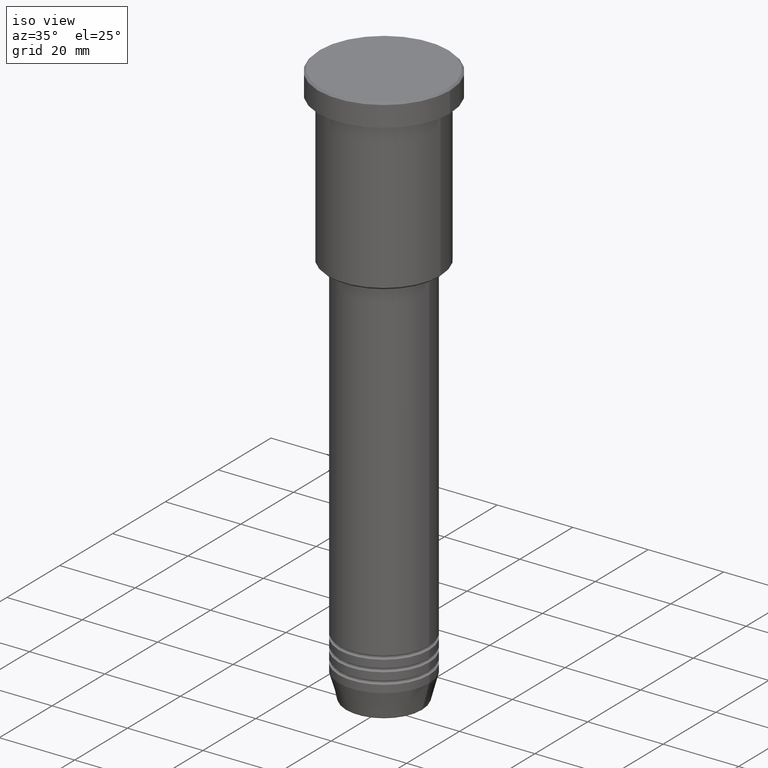
[diagram: clean part render]
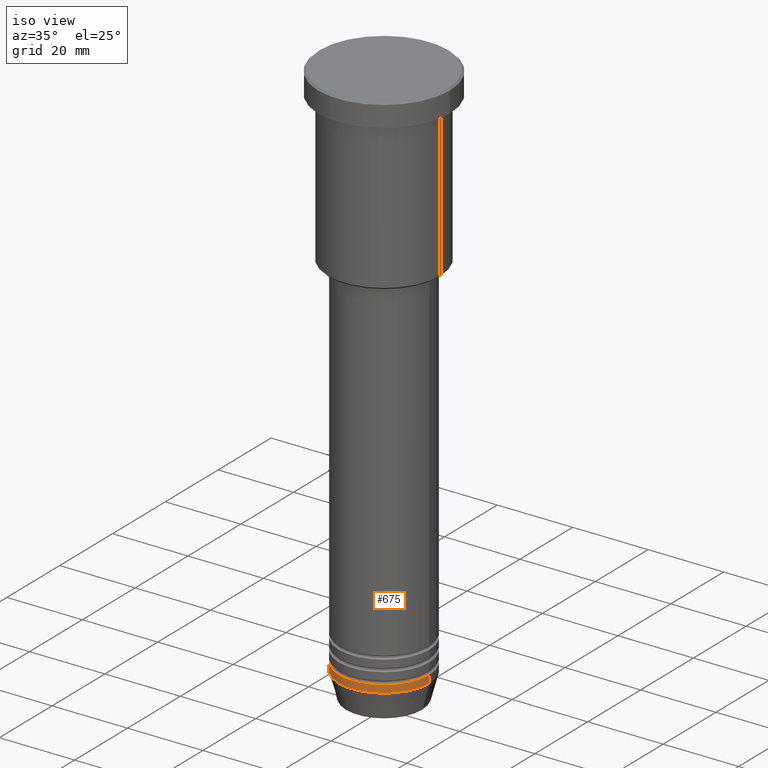
[diagram: same view with one face highlighted and labeled with its STEP entity id]
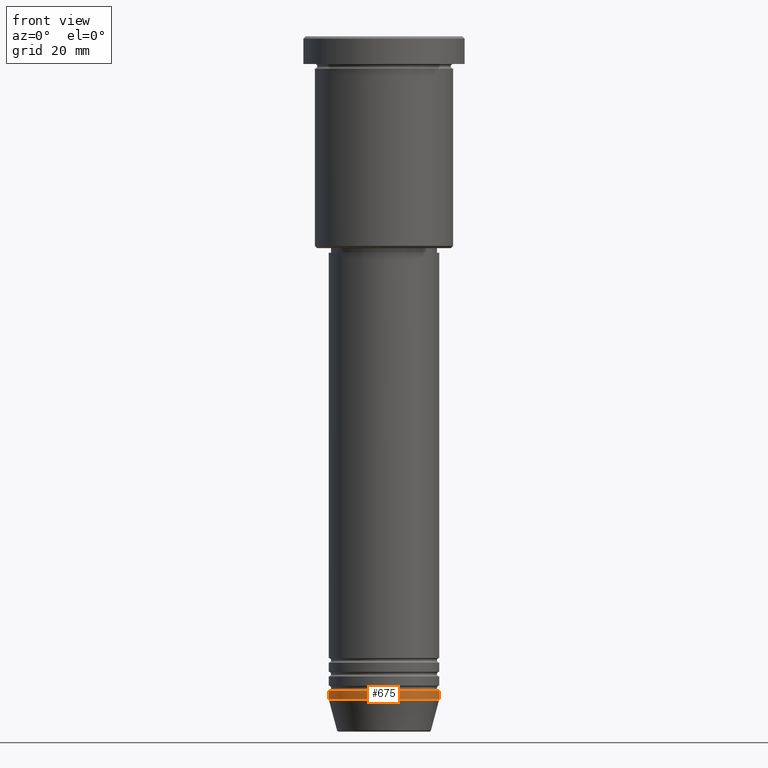
[diagram: same view with one face highlighted and labeled with its STEP entity id]
A machine part, iso view. The second image highlights one B-rep face of the part: STEP entity #675.
A second angle (front view) of the same face is appended — the face is thin or edge-on in the first view.
In plain terms, the highlighted cylindrical surface (partial cylindrical patch) has radius 12 mm, axis along (-0, -0, 1).
Its self-contained STEP definition (entity closure, byte-faithful):
#17 = CARTESIAN_POINT ( 'NONE',  ( 0.000000000000000000, 0.000000000000000000, -144.0000000000000000 ) ) ;
#38 = ORIENTED_EDGE ( 'NONE', *, *, #563, .F. ) ;
#40 = CARTESIAN_POINT ( 'NONE',  ( -12.00000000000000000, 1.469576158976823947E-15, 0.000000000000000000 ) ) ;
#65 = EDGE_CURVE ( 'NONE', #600, #318, #651, .T. ) ;
#99 = DIRECTION ( 'NONE',  ( 1.000000000000000000, 0.000000000000000000, 0.000000000000000000 ) ) ;
#116 = FACE_OUTER_BOUND ( 'NONE', #224, .T. ) ;
#125 = CARTESIAN_POINT ( 'NONE',  ( 12.00000000000000000, 0.000000000000000000, 0.000000000000000000 ) ) ;
#214 = EDGE_CURVE ( 'NONE', #686, #318, #369, .T. ) ;
#217 = CARTESIAN_POINT ( 'NONE',  ( -12.00000000000000000, 1.469576158976823947E-15, -142.0000000000000000 ) ) ;
#224 = EDGE_LOOP ( 'NONE', ( #38, #1044, #803, #461 ) ) ;
#285 = CYLINDRICAL_SURFACE ( 'NONE', #328, 12.00000000000000000 ) ;
#305 = DIRECTION ( 'NONE',  ( 1.000000000000000000, 0.000000000000000000, 0.000000000000000000 ) ) ;
#318 = VERTEX_POINT ( 'NONE', #890 ) ;
#323 = CARTESIAN_POINT ( 'NONE',  ( 12.00000000000000000, 0.000000000000000000, -144.0000000000000000 ) ) ;
#327 = VERTEX_POINT ( 'NONE', #474 ) ;
#328 = AXIS2_PLACEMENT_3D ( 'NONE', #809, #1179, #99 ) ;
#341 = EDGE_CURVE ( 'NONE', #327, #686, #983, .T. ) ;
#347 = AXIS2_PLACEMENT_3D ( 'NONE', #798, #907, #995 ) ;
#369 = LINE ( 'NONE', #125, #665 ) ;
#461 = ORIENTED_EDGE ( 'NONE', *, *, #65, .F. ) ;
#469 = LINE ( 'NONE', #40, #1116 ) ;
#474 = CARTESIAN_POINT ( 'NONE',  ( -12.00000000000000000, 1.469576158976823947E-15, -144.0000000000000000 ) ) ;
#563 = EDGE_CURVE ( 'NONE', #327, #600, #469, .T. ) ;
#600 = VERTEX_POINT ( 'NONE', #217 ) ;
#651 = CIRCLE ( 'NONE', #347, 12.00000000000000000 ) ;
#665 = VECTOR ( 'NONE', #731, 1000.000000000000000 ) ;
#675 = ADVANCED_FACE ( 'NONE', ( #116 ), #285, .T. ) ;
#686 = VERTEX_POINT ( 'NONE', #323 ) ;
#731 = DIRECTION ( 'NONE',  ( -0.000000000000000000, -0.000000000000000000, 1.000000000000000000 ) ) ;
#740 = DIRECTION ( 'NONE',  ( -0.000000000000000000, -0.000000000000000000, 1.000000000000000000 ) ) ;
#798 = CARTESIAN_POINT ( 'NONE',  ( 0.000000000000000000, 0.000000000000000000, -142.0000000000000000 ) ) ;
#803 = ORIENTED_EDGE ( 'NONE', *, *, #214, .T. ) ;
#809 = CARTESIAN_POINT ( 'NONE',  ( 0.000000000000000000, 0.000000000000000000, 0.000000000000000000 ) ) ;
#842 = DIRECTION ( 'NONE',  ( -0.000000000000000000, -0.000000000000000000, 1.000000000000000000 ) ) ;
#890 = CARTESIAN_POINT ( 'NONE',  ( 12.00000000000000000, 0.000000000000000000, -142.0000000000000000 ) ) ;
#907 = DIRECTION ( 'NONE',  ( -0.000000000000000000, -0.000000000000000000, 1.000000000000000000 ) ) ;
#983 = CIRCLE ( 'NONE', #1133, 12.00000000000000000 ) ;
#995 = DIRECTION ( 'NONE',  ( 1.000000000000000000, 0.000000000000000000, 0.000000000000000000 ) ) ;
#1044 = ORIENTED_EDGE ( 'NONE', *, *, #341, .T. ) ;
#1116 = VECTOR ( 'NONE', #842, 1000.000000000000000 ) ;
#1133 = AXIS2_PLACEMENT_3D ( 'NONE', #17, #740, #305 ) ;
#1179 = DIRECTION ( 'NONE',  ( -0.000000000000000000, -0.000000000000000000, 1.000000000000000000 ) ) ;